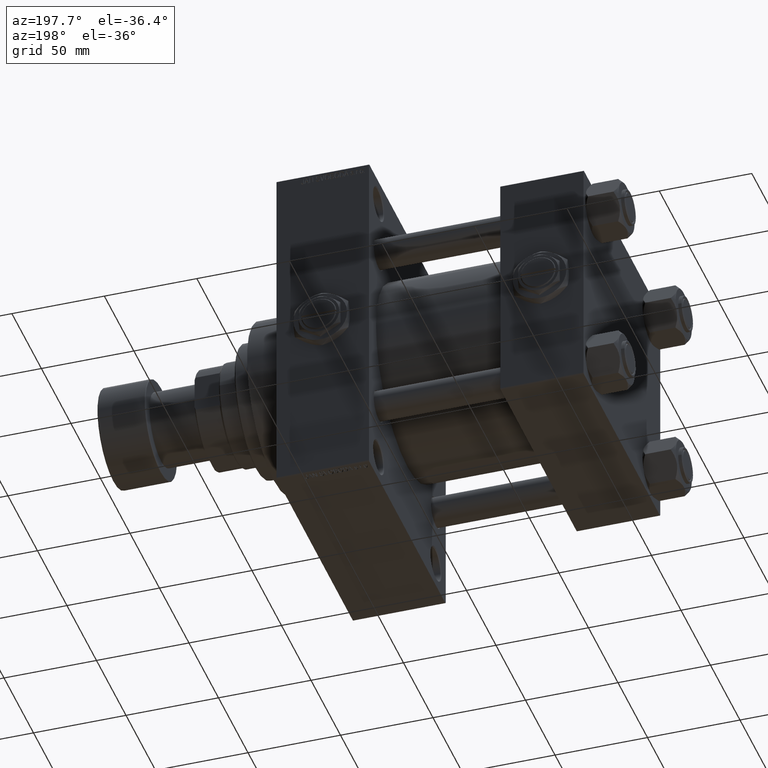
[diagram: clean part render]
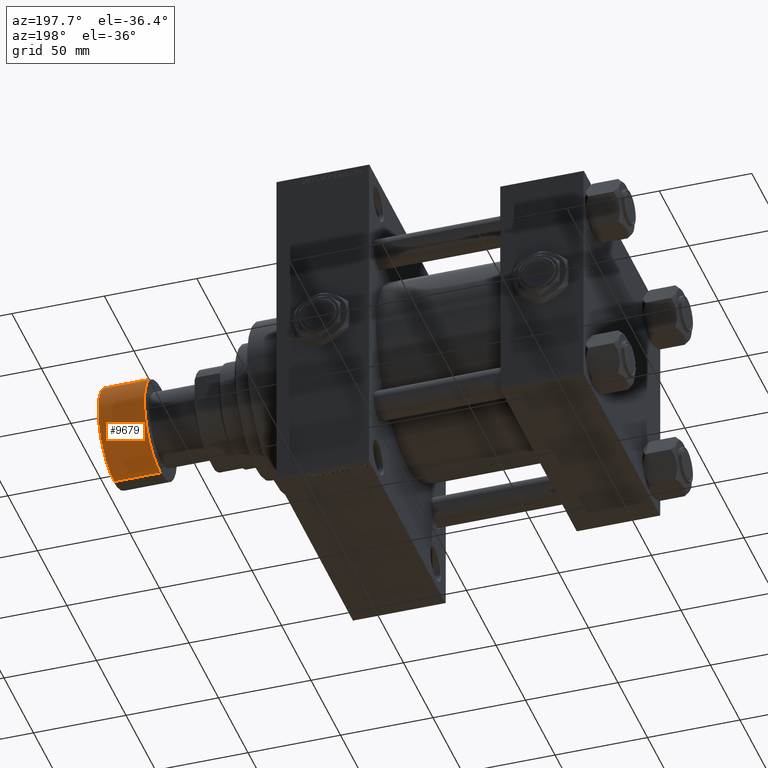
[diagram: same view with one face highlighted and labeled with its STEP entity id]
A machine part, auxiliary view. The second image highlights one B-rep face of the part: STEP entity #9679.
In plain terms, the highlighted cylindrical surface (partial cylindrical patch) has radius 27 mm, axis along (1, 0, 0).
Its self-contained STEP definition (entity closure, byte-faithful):
#865 = CARTESIAN_POINT ( 'NONE',  ( 27.00000000000000000, 0.000000000000000000, -25.50000000000000000 ) ) ;
#3039 = CARTESIAN_POINT ( 'NONE',  ( 0.000000000000000000, 0.000000000000000000, -0.5000000000000004441 ) ) ;
#3592 = VECTOR ( 'NONE', #46846, 1000.000000000000000 ) ;
#4819 = ORIENTED_EDGE ( 'NONE', *, *, #25217, .T. ) ;
#6113 = DIRECTION ( 'NONE',  ( -0.000000000000000000, -0.000000000000000000, -1.000000000000000000 ) ) ;
#6279 = DIRECTION ( 'NONE',  ( 0.000000000000000000, 0.000000000000000000, 1.000000000000000000 ) ) ;
#6948 = ORIENTED_EDGE ( 'NONE', *, *, #32474, .T. ) ;
#8551 = CARTESIAN_POINT ( 'NONE',  ( -27.00000000000000000, 3.306546357697852944E-15, -25.50000000000000000 ) ) ;
#9679 = ADVANCED_FACE ( 'NONE', ( #35413 ), #15233, .T. ) ;
#9741 = LINE ( 'NONE', #33002, #12996 ) ;
#9950 = DIRECTION ( 'NONE',  ( 1.000000000000000000, 0.000000000000000000, 0.000000000000000000 ) ) ;
#12778 = AXIS2_PLACEMENT_3D ( 'NONE', #38492, #38995, #26493 ) ;
#12996 = VECTOR ( 'NONE', #29683, 1000.000000000000000 ) ;
#13137 = CARTESIAN_POINT ( 'NONE',  ( -27.00000000000000000, 3.306546357697852944E-15, -0.5000000000000004441 ) ) ;
#15233 = CYLINDRICAL_SURFACE ( 'NONE', #12778, 27.00000000000000000 ) ;
#15665 = CARTESIAN_POINT ( 'NONE',  ( -27.00000000000000000, 3.306546357697852944E-15, -26.00000000000000000 ) ) ;
#19483 = EDGE_CURVE ( 'NONE', #40323, #38395, #9741, .T. ) ;
#19804 = AXIS2_PLACEMENT_3D ( 'NONE', #3039, #6113, #9950 ) ;
#25217 = EDGE_CURVE ( 'NONE', #40323, #34367, #32008, .T. ) ;
#26138 = EDGE_CURVE ( 'NONE', #35303, #38395, #27181, .T. ) ;
#26493 = DIRECTION ( 'NONE',  ( 1.000000000000000000, 0.000000000000000000, 0.000000000000000000 ) ) ;
#27181 = CIRCLE ( 'NONE', #19804, 27.00000000000000000 ) ;
#29683 = DIRECTION ( 'NONE',  ( 0.000000000000000000, 0.000000000000000000, 1.000000000000000000 ) ) ;
#30288 = ORIENTED_EDGE ( 'NONE', *, *, #19483, .F. ) ;
#32008 = CIRCLE ( 'NONE', #48323, 27.00000000000000000 ) ;
#32474 = EDGE_CURVE ( 'NONE', #34367, #35303, #49930, .T. ) ;
#33002 = CARTESIAN_POINT ( 'NONE',  ( 27.00000000000000000, 0.000000000000000000, -26.00000000000000000 ) ) ;
#34367 = VERTEX_POINT ( 'NONE', #8551 ) ;
#34396 = DIRECTION ( 'NONE',  ( 1.000000000000000000, 0.000000000000000000, 0.000000000000000000 ) ) ;
#34654 = CARTESIAN_POINT ( 'NONE',  ( 0.000000000000000000, 0.000000000000000000, -25.50000000000000000 ) ) ;
#35303 = VERTEX_POINT ( 'NONE', #13137 ) ;
#35413 = FACE_OUTER_BOUND ( 'NONE', #36334, .T. ) ;
#36250 = ORIENTED_EDGE ( 'NONE', *, *, #26138, .T. ) ;
#36334 = EDGE_LOOP ( 'NONE', ( #4819, #6948, #36250, #30288 ) ) ;
#38395 = VERTEX_POINT ( 'NONE', #42165 ) ;
#38492 = CARTESIAN_POINT ( 'NONE',  ( 0.000000000000000000, 0.000000000000000000, -26.00000000000000000 ) ) ;
#38995 = DIRECTION ( 'NONE',  ( 0.000000000000000000, 0.000000000000000000, 1.000000000000000000 ) ) ;
#40323 = VERTEX_POINT ( 'NONE', #865 ) ;
#42165 = CARTESIAN_POINT ( 'NONE',  ( 27.00000000000000000, 0.000000000000000000, -0.5000000000000004441 ) ) ;
#46846 = DIRECTION ( 'NONE',  ( 0.000000000000000000, 0.000000000000000000, 1.000000000000000000 ) ) ;
#48323 = AXIS2_PLACEMENT_3D ( 'NONE', #34654, #6279, #34396 ) ;
#49930 = LINE ( 'NONE', #15665, #3592 ) ;